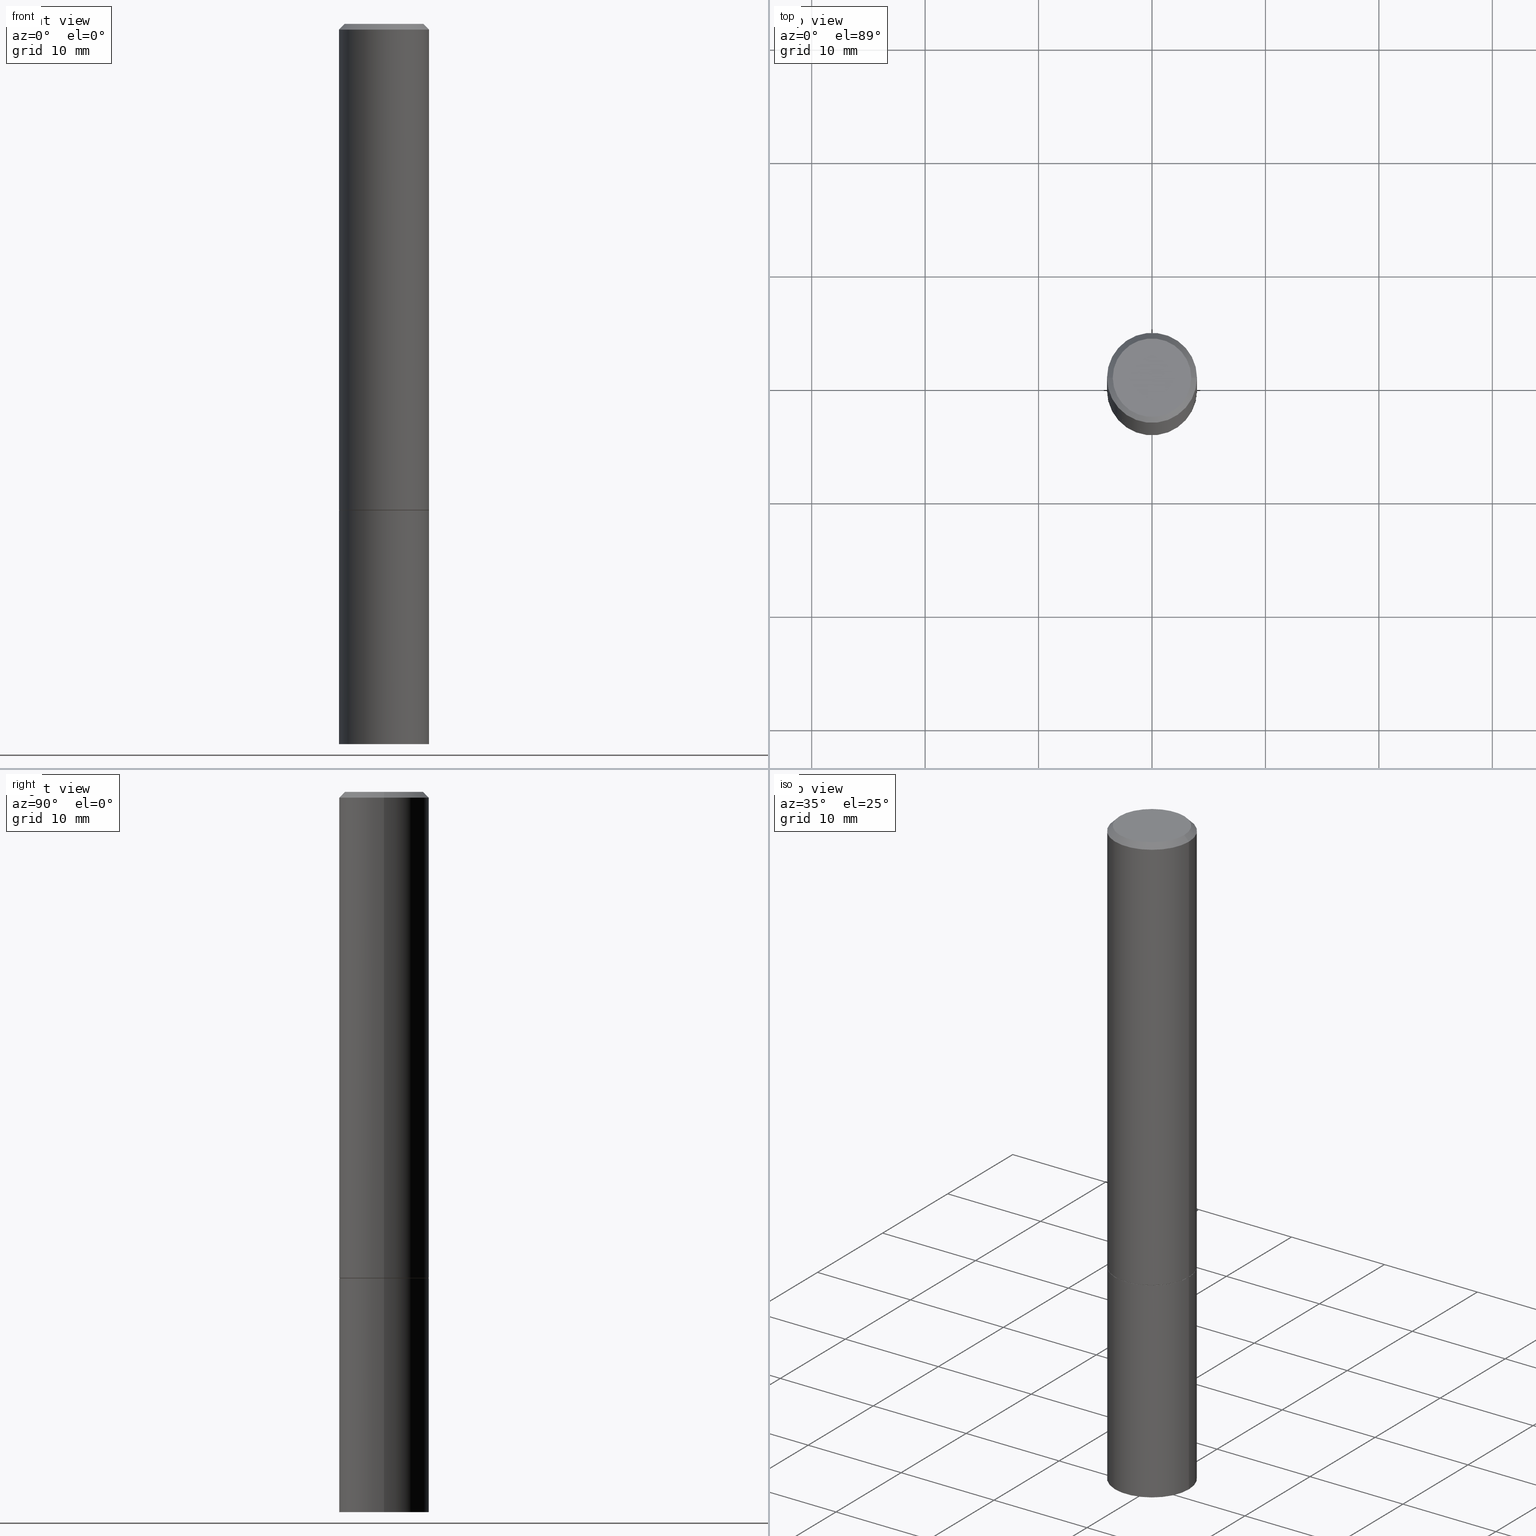
[diagram: canonical four-view strip — front | top / right | iso, engineering-drawing reading convention]
A machine part, canonical four-view strip (front | top / right | iso — engineering-drawing reading convention). The complete STEP part file that produces these views, byte-faithful:
ISO-10303-21;
HEADER;
FILE_DESCRIPTION (( 'STEP AP203' ),
    '1' );
FILE_NAME ('30539.STEP',
    '2024-02-27T12:44:27',
    ( '' ),
    ( '' ),
    'SwSTEP 2.0',
    'SolidWorks 2023',
    '' );
FILE_SCHEMA (( 'CONFIG_CONTROL_DESIGN' ));
ENDSEC;

DATA;
#1 = CC_DESIGN_PERSON_AND_ORGANIZATION_ASSIGNMENT ( #76, #114, ( #222 ) ) ;
#2 = ORIENTED_EDGE ( 'NONE', *, *, #300, .F. ) ;
#3 = ORIENTED_EDGE ( 'NONE', *, *, #32, .F. ) ;
#4 = CARTESIAN_POINT ( 'NONE',  ( 0.000000000000000000, 0.000000000000000000, 0.000000000000000000 ) ) ;
#5 = PERSON_AND_ORGANIZATION ( #194, #133 ) ;
#6 = EDGE_CURVE ( 'NONE', #252, #28, #40, .T. ) ;
#7 = DIRECTION ( 'NONE',  ( -0.7071067811865232589, 7.493145998870265808E-15, 0.7071067811865715536 ) ) ;
#8 = FACE_OUTER_BOUND ( 'NONE', #115, .T. ) ;
#9 = DIRECTION ( 'NONE',  ( 1.000000000000000000, -6.982962677686269077E-15, 0.000000000000000000 ) ) ;
#10 = PLANE ( 'NONE',  #112 ) ;
#11 = EDGE_LOOP ( 'NONE', ( #156, #26 ) ) ;
#12 = CARTESIAN_POINT ( 'NONE',  ( -0.1562499999999998057, 1.021258291611614692E-15, -0.02000000000000003511 ) ) ;
#13 = PRODUCT_DEFINITION_FORMATION_WITH_SPECIFIED_SOURCE ( 'ANY', '', #278, .NOT_KNOWN. ) ;
#14 = DIRECTION ( 'NONE',  ( 1.000000000000000000, -6.982962677686268288E-15, 0.000000000000000000 ) ) ;
#15 = DIRECTION ( 'NONE',  ( -2.445468806185136597E-29, 3.491481338843145583E-15, 1.000000000000000000 ) ) ;
#16 = ORIENTED_EDGE ( 'NONE', *, *, #172, .T. ) ;
#17 = LINE ( 'NONE', #12, #164 ) ;
#18 = ORIENTED_EDGE ( 'NONE', *, *, #77, .F. ) ;
#19 = APPROVAL_DATE_TIME ( #83, #279 ) ;
#20 = AXIS2_PLACEMENT_3D ( 'NONE', #345, #44, #269 ) ;
#21 = DIRECTION ( 'NONE',  ( -2.445468806185136597E-29, 3.491481338843145583E-15, 1.000000000000000000 ) ) ;
#22 = APPROVAL_STATUS ( 'not_yet_approved' ) ;
#23 = EDGE_LOOP ( 'NONE', ( #354, #132, #254, #3 ) ) ;
#24 = VERTEX_POINT ( 'NONE', #105 ) ;
#25 = ORIENTED_EDGE ( 'NONE', *, *, #196, .T. ) ;
#26 = ORIENTED_EDGE ( 'NONE', *, *, #196, .F. ) ;
#27 = CALENDAR_DATE ( 2024, 27, 2 ) ;
#28 = VERTEX_POINT ( 'NONE', #351 ) ;
#29 = DIRECTION ( 'NONE',  ( -2.445468806185136877E-29, 3.491481338843145188E-15, 1.000000000000000000 ) ) ;
#30 = PERSON_AND_ORGANIZATION ( #194, #133 ) ;
#31 = AXIS2_PLACEMENT_3D ( 'NONE', #150, #265, #9 ) ;
#32 = EDGE_CURVE ( 'NONE', #61, #110, #235, .T. ) ;
#33 = DIRECTION ( 'NONE',  ( -2.445468806185136597E-29, 3.491481338843145583E-15, 1.000000000000000000 ) ) ;
#34 = CYLINDRICAL_SURFACE ( 'NONE', #261, 0.1562499999999999167 ) ;
#35 = DATE_AND_TIME ( #119, #161 ) ;
#36 = AXIS2_PLACEMENT_3D ( 'NONE', #237, #97, #214 ) ;
#37 = FACE_OUTER_BOUND ( 'NONE', #293, .T. ) ;
#38 = EDGE_CURVE ( 'NONE', #46, #110, #319, .T. ) ;
#39 = DIRECTION ( 'NONE',  ( 1.000000000000000000, -6.982962677686265133E-15, 4.876176775795935232E-29 ) ) ;
#40 = LINE ( 'NONE', #126, #51 ) ;
#41 = DIRECTION ( 'NONE',  ( -1.000000000000000000, 6.982962677686265922E-15, -4.876176775795935793E-29 ) ) ;
#42 = DIRECTION ( 'NONE',  ( -1.000000000000000000, 6.982962677686265922E-15, -4.876176775795935793E-29 ) ) ;
#43 = UNCERTAINTY_MEASURE_WITH_UNIT (LENGTH_MEASURE( 1.000000000000000082E-05 ), #106, 'distance_accuracy_value', 'NONE');
#44 = DIRECTION ( 'NONE',  ( -2.445468806185136597E-29, 3.491481338843145583E-15, 1.000000000000000000 ) ) ;
#45 = ADVANCED_FACE ( 'NONE', ( #242 ), #128, .T. ) ;
#46 = VERTEX_POINT ( 'NONE', #360 ) ;
#47 = DIRECTION ( 'NONE',  ( 1.000000000000000000, -6.982962677686266711E-15, 4.876176775795935232E-29 ) ) ;
#48 = ORIENTED_EDGE ( 'NONE', *, *, #6, .T. ) ;
#49 = DATE_AND_TIME ( #299, #82 ) ;
#50 = DIRECTION ( 'NONE',  ( 1.000000000000000000, 0.000000000000000000, 0.000000000000000000 ) ) ;
#51 = VECTOR ( 'NONE', #209, 39.37007874015748854 ) ;
#52 = ORIENTED_EDGE ( 'NONE', *, *, #226, .T. ) ;
#53 = AXIS2_PLACEMENT_3D ( 'NONE', #94, #208, #125 ) ;
#54 = CC_DESIGN_PERSON_AND_ORGANIZATION_ASSIGNMENT ( #136, #257, ( #13 ) ) ;
#55 = ADVANCED_FACE ( 'NONE', ( #183 ), #297, .T. ) ;
#56 = VECTOR ( 'NONE', #72, 39.37007874015748143 ) ;
#57 = DIRECTION ( 'NONE',  ( 1.000000000000000000, -6.982962677686265133E-15, 4.876176775795935232E-29 ) ) ;
#58 = CARTESIAN_POINT ( 'NONE',  ( -0.1562500000000000000, 1.110223024625156540E-15, -7.685836078523291160E-30 ) ) ;
#59 = CC_DESIGN_PERSON_AND_ORGANIZATION_ASSIGNMENT ( #5, #187, ( #291 ) ) ;
#60 = AXIS2_PLACEMENT_3D ( 'NONE', #63, #323, #47 ) ;
#61 = VERTEX_POINT ( 'NONE', #327 ) ;
#62 = DIRECTION ( 'NONE',  ( 1.000000000000000000, -6.982962677686269077E-15, 0.000000000000000000 ) ) ;
#63 = CARTESIAN_POINT ( 'NONE',  ( 0.000000000000000000, 0.000000000000000000, 0.000000000000000000 ) ) ;
#64 = EDGE_CURVE ( 'NONE', #281, #61, #186, .T. ) ;
#65 = DIRECTION ( 'NONE',  ( 2.438088387897960049E-29, -3.491481338843145188E-15, -1.000000000000000000 ) ) ;
#66 = VERTEX_POINT ( 'NONE', #350 ) ;
#67 = DIRECTION ( 'NONE',  ( -2.445468806185136597E-29, 3.491481338843145583E-15, 1.000000000000000000 ) ) ;
#68 = CARTESIAN_POINT ( 'NONE',  ( 1.091087918388540310E-15, 0.1562499999999912570, -2.500000000000000444 ) ) ;
#69 = EDGE_LOOP ( 'NONE', ( #251, #244, #308, #301 ) ) ;
#70 = CARTESIAN_POINT ( 'NONE',  ( 9.514286648347523799E-16, 0.1362499999999998157, -4.757143324173778663E-16 ) ) ;
#71 = CIRCLE ( 'NONE', #31, 0.1562500000000000000 ) ;
#72 = DIRECTION ( 'NONE',  ( 0.7071067811865467956, -7.319954787623254468E-15, -0.7071067811865482389 ) ) ;
#73 = ORIENTED_EDGE ( 'NONE', *, *, #263, .T. ) ;
#74 = PERSON_AND_ORGANIZATION ( #194, #133 ) ;
#75 = ORIENTED_EDGE ( 'NONE', *, *, #6, .F. ) ;
#76 = PERSON_AND_ORGANIZATION ( #194, #133 ) ;
#77 = EDGE_CURVE ( 'NONE', #356, #66, #334, .T. ) ;
#78 = DATE_AND_TIME ( #27, #171 ) ;
#79 = ORIENTED_EDGE ( 'NONE', *, *, #104, .T. ) ;
#80 = CC_DESIGN_APPROVAL ( #213, ( #291 ) ) ;
#81 = ORIENTED_EDGE ( 'NONE', *, *, #329, .T. ) ;
#82 = LOCAL_TIME ( 7, 44, 27.00000000000000000, #192 ) ;
#83 = DATE_AND_TIME ( #201, #296 ) ;
#84 = EDGE_LOOP ( 'NONE', ( #215, #52 ) ) ;
#85 = DIRECTION ( 'NONE',  ( -1.000000000000000000, 6.982962677686266711E-15, 0.000000000000000000 ) ) ;
#86 = EDGE_CURVE ( 'NONE', #252, #366, #139, .T. ) ;
#87 = ORIENTED_EDGE ( 'NONE', *, *, #263, .F. ) ;
#88 = PLANE ( 'NONE',  #325 ) ;
#89 = CARTESIAN_POINT ( 'NONE',  ( -0.1552499999999999991, -4.790502902699674808E-15, -1.688000000000000167 ) ) ;
#90 = CIRCLE ( 'NONE', #342, 0.1562500000000000000 ) ;
#91 = ADVANCED_FACE ( 'NONE', ( #8 ), #34, .T. ) ;
#92 = CYLINDRICAL_SURFACE ( 'NONE', #313, 0.1562499999999999167 ) ;
#93 = VECTOR ( 'NONE', #7, 39.37007874015748854 ) ;
#94 = CARTESIAN_POINT ( 'NONE',  ( 4.127951344840510809E-29, -5.893620499967230340E-15, -1.688000000000000167 ) ) ;
#95 = CARTESIAN_POINT ( 'NONE',  ( 4.127951344840510809E-29, -5.893620499967230340E-15, -1.688000000000000167 ) ) ;
#96 = MANIFOLD_SOLID_BREP ( 'Body-Move/Copy2[2]', #108 ) ;
#97 = DIRECTION ( 'NONE',  ( -2.445468806185136597E-29, 3.491481338843145583E-15, 1.000000000000000000 ) ) ;
#98 = PLANE ( 'NONE',  #203 ) ;
#99 = ORIENTED_EDGE ( 'NONE', *, *, #130, .T. ) ;
#100 = AXIS2_PLACEMENT_3D ( 'NONE', #339, #287, #85 ) ;
#101 = DIRECTION ( 'NONE',  ( -2.445468806185136597E-29, 3.491481338843145583E-15, 1.000000000000000000 ) ) ;
#102 = CARTESIAN_POINT ( 'NONE',  ( -0.1562499999999999167, 1.110223024625155949E-15, -7.685836078523285555E-30 ) ) ;
#103 = COORDINATED_UNIVERSAL_TIME_OFFSET ( 5, 0, .BEHIND. ) ;
#104 = EDGE_CURVE ( 'NONE', #366, #281, #227, .T. ) ;
#105 = CARTESIAN_POINT ( 'NONE',  ( -0.1562500000000000000, -6.200938898912389918E-15, -1.688000000000000167 ) ) ;
#106 =( CONVERSION_BASED_UNIT ( 'INCH', #157 ) LENGTH_UNIT ( ) NAMED_UNIT ( #212 ) );
#107 = PERSON_AND_ORGANIZATION ( #194, #133 ) ;
#108 = CLOSED_SHELL ( 'NONE', ( #341, #91, #109, #288, #239, #315, #185, #231 ) ) ;
#109 = ADVANCED_FACE ( 'NONE', ( #228 ), #131, .T. ) ;
#110 = VERTEX_POINT ( 'NONE', #260 ) ;
#111 = ORIENTED_EDGE ( 'NONE', *, *, #38, .F. ) ;
#112 = AXIS2_PLACEMENT_3D ( 'NONE', #70, #206, #41 ) ;
#113 = APPROVAL_PERSON_ORGANIZATION ( #134, #213, #361 ) ;
#114 = PERSON_AND_ORGANIZATION_ROLE ( 'creator' ) ;
#115 = EDGE_LOOP ( 'NONE', ( #210, #193, #87, #220 ) ) ;
#116 = CC_DESIGN_PERSON_AND_ORGANIZATION_ASSIGNMENT ( #30, #147, ( #13 ) ) ;
#117 = DIRECTION ( 'NONE',  ( 1.000000000000000000, -6.982962677686269077E-15, 0.000000000000000000 ) ) ;
#118 = CLOSED_SHELL ( 'NONE', ( #167, #45, #148, #55 ) ) ;
#119 = CALENDAR_DATE ( 2024, 27, 2 ) ;
#120 = EDGE_CURVE ( 'NONE', #306, #356, #305, .T. ) ;
#121 = CARTESIAN_POINT ( 'NONE',  ( 4.127951344840510809E-29, -5.893620499967230340E-15, -1.688000000000000167 ) ) ;
#122 = DIRECTION ( 'NONE',  ( -2.445468806185136597E-29, 3.491481338843145583E-15, 1.000000000000000000 ) ) ;
#123 = AXIS2_PLACEMENT_3D ( 'NONE', #145, #283, #149 ) ;
#124 = AXIS2_PLACEMENT_3D ( 'NONE', #153, #174, #14 ) ;
#125 = DIRECTION ( 'NONE',  ( 1.000000000000000000, -6.982962677686268288E-15, 0.000000000000000000 ) ) ;
#126 = CARTESIAN_POINT ( 'NONE',  ( 0.1552499999999999991, -6.977725455678023499E-15, -1.688000000000000167 ) ) ;
#127 = CARTESIAN_POINT ( 'NONE',  ( 0.1562500000000000000, -9.819791265496344905E-15, -2.500000000000000000 ) ) ;
#128 = PLANE ( 'NONE',  #289 ) ;
#129 = DIRECTION ( 'NONE',  ( -2.445468806185136877E-29, 3.491481338843145188E-15, 1.000000000000000000 ) ) ;
#130 = EDGE_CURVE ( 'NONE', #306, #24, #340, .T. ) ;
#131 = CONICAL_SURFACE ( 'NONE', #100, 0.1562499999999998057, 0.7853981633974472798 ) ;
#132 = ORIENTED_EDGE ( 'NONE', *, *, #300, .T. ) ;
#133 = ORGANIZATION ( 'UNSPECIFIED', 'UNSPECIFIED', '' ) ;
#134 = PERSON_AND_ORGANIZATION ( #194, #133 ) ;
#135 = DIRECTION ( 'NONE',  ( 1.000000000000000000, -6.982962677686266711E-15, 4.876176775795936353E-29 ) ) ;
#136 = PERSON_AND_ORGANIZATION ( #194, #133 ) ;
#137 = ORIENTED_EDGE ( 'NONE', *, *, #104, .F. ) ;
#138 = EDGE_CURVE ( 'NONE', #356, #306, #364, .T. ) ;
#139 = CIRCLE ( 'NONE', #123, 0.1552499999999999991 ) ;
#140 = ORIENTED_EDGE ( 'NONE', *, *, #333, .F. ) ;
#141 = APPROVAL_PERSON_ORGANIZATION ( #189, #253, #255 ) ;
#142 = ORIENTED_EDGE ( 'NONE', *, *, #32, .T. ) ;
#143 = DATE_TIME_ROLE ( 'creation_date' ) ;
#144 = AXIS2_PLACEMENT_3D ( 'NONE', #202, #33, #204 ) ;
#145 = CARTESIAN_POINT ( 'NONE',  ( 4.127951344840510809E-29, -5.893620499967230340E-15, -1.688000000000000167 ) ) ;
#146 = APPROVAL_PERSON_ORGANIZATION ( #74, #279, #331 ) ;
#147 = PERSON_AND_ORGANIZATION_ROLE ( 'creator' ) ;
#148 = ADVANCED_FACE ( 'NONE', ( #258 ), #88, .F. ) ;
#149 = DIRECTION ( 'NONE',  ( 1.000000000000000000, -6.982962677686268288E-15, 0.000000000000000000 ) ) ;
#150 = CARTESIAN_POINT ( 'NONE',  ( 4.125505876034325766E-29, -5.890129018628387333E-15, -1.687000000000000055 ) ) ;
#151 = DIRECTION ( 'NONE',  ( 1.000000000000000000, -6.982962677686265133E-15, 0.000000000000000000 ) ) ;
#152 = CONICAL_SURFACE ( 'NONE', #124, 0.1552499999999999991, 0.7853981633974141952 ) ;
#153 = CARTESIAN_POINT ( 'NONE',  ( 4.127951344840510809E-29, -5.893620499967230340E-15, -1.688000000000000167 ) ) ;
#154 = ORIENTED_EDGE ( 'NONE', *, *, #86, .T. ) ;
#155 = FACE_OUTER_BOUND ( 'NONE', #23, .T. ) ;
#156 = ORIENTED_EDGE ( 'NONE', *, *, #86, .F. ) ;
#157 = LENGTH_MEASURE_WITH_UNIT ( LENGTH_MEASURE( 0.02539999999999999897 ), #310 );
#158 = CIRCLE ( 'NONE', #230, 0.1562499999999998057 ) ;
#159 = APPLICATION_CONTEXT ( 'configuration controlled 3d designs of mechanical parts and assemblies' ) ;
#160 = FACE_OUTER_BOUND ( 'NONE', #188, .T. ) ;
#161 = LOCAL_TIME ( 7, 44, 27.00000000000000000, #103 ) ;
#162 = PRODUCT_DEFINITION_SHAPE ( 'NONE', 'NONE',  #222 ) ;
#163 = SECURITY_CLASSIFICATION_LEVEL ( 'unclassified' ) ;
#164 = VECTOR ( 'NONE', #272, 39.37007874015748143 ) ;
#165 = EDGE_LOOP ( 'NONE', ( #81, #282 ) ) ;
#166 = EDGE_LOOP ( 'NONE', ( #154, #79, #140, #75 ) ) ;
#167 = ADVANCED_FACE ( 'NONE', ( #160 ), #362, .T. ) ;
#168 = APPLICATION_PROTOCOL_DEFINITION ( 'international standard', 'config_control_design', 1994, #233 ) ;
#169 = ORIENTED_EDGE ( 'NONE', *, *, #309, .F. ) ;
#170 = APPROVAL_DATE_TIME ( #284, #253 ) ;
#171 = LOCAL_TIME ( 7, 44, 27.00000000000000000, #307 ) ;
#172 = EDGE_CURVE ( 'NONE', #199, #61, #17, .T. ) ;
#173 = DIRECTION ( 'NONE',  ( -2.445468806185136597E-29, 3.491481338843145583E-15, 1.000000000000000000 ) ) ;
#174 = DIRECTION ( 'NONE',  ( -2.445468806185136597E-29, 3.491481338843145583E-15, 1.000000000000000000 ) ) ;
#175 = AXIS2_PLACEMENT_3D ( 'NONE', #95, #317, #62 ) ;
#176 = FACE_OUTER_BOUND ( 'NONE', #11, .T. ) ;
#177 = CC_DESIGN_DATE_AND_TIME_ASSIGNMENT ( #78, #143, ( #222 ) ) ;
#178 = FACE_OUTER_BOUND ( 'NONE', #240, .T. ) ;
#179 = DIRECTION ( 'NONE',  ( -2.445468806185136877E-29, 3.491481338843145188E-15, 1.000000000000000000 ) ) ;
#180 = FACE_OUTER_BOUND ( 'NONE', #84, .T. ) ;
#181 = AXIS2_PLACEMENT_3D ( 'NONE', #271, #15, #355 ) ;
#182 = CIRCLE ( 'NONE', #236, 0.1562500000000000000 ) ;
#183 = FACE_OUTER_BOUND ( 'NONE', #69, .T. ) ;
#184 = DIRECTION ( 'NONE',  ( -1.000000000000000000, 6.982962677686266711E-15, 0.000000000000000000 ) ) ;
#185 = ADVANCED_FACE ( 'NONE', ( #176 ), #98, .F. ) ;
#186 = LINE ( 'NONE', #102, #358 ) ;
#187 = PERSON_AND_ORGANIZATION_ROLE ( 'classification_officer' ) ;
#188 = EDGE_LOOP ( 'NONE', ( #352, #99, #322, #18 ) ) ;
#189 = PERSON_AND_ORGANIZATION ( #194, #133 ) ;
#190 = EDGE_LOOP ( 'NONE', ( #286, #270 ) ) ;
#191 = DIRECTION ( 'NONE',  ( 2.438088387897960049E-29, -3.491481338843145188E-15, -1.000000000000000000 ) ) ;
#192 = COORDINATED_UNIVERSAL_TIME_OFFSET ( 5, 0, .BEHIND. ) ;
#193 = ORIENTED_EDGE ( 'NONE', *, *, #64, .T. ) ;
#194 = PERSON ( 'UNSPECIFIED', 'UNSPECIFIED', 'UNSPECIFIED', ('UNSPECIFIED'), ('UNSPECIFIED'), ('UNSPECIFIED') ) ;
#195 = CIRCLE ( 'NONE', #20, 0.1552499999999999991 ) ;
#196 = EDGE_CURVE ( 'NONE', #366, #252, #195, .T. ) ;
#197 = CONICAL_SURFACE ( 'NONE', #268, 0.1562499999999998057, 0.7853981633974472798 ) ;
#198 =( NAMED_UNIT ( * ) SI_UNIT ( $, .STERADIAN. ) SOLID_ANGLE_UNIT ( ) );
#199 = VERTEX_POINT ( 'NONE', #241 ) ;
#200 = CARTESIAN_POINT ( 'NONE',  ( 0.1562500000000000000, -1.091087918388479174E-15, 7.619026212181150377E-30 ) ) ;
#201 = CALENDAR_DATE ( 2024, 27, 2 ) ;
#202 = CARTESIAN_POINT ( 'NONE',  ( 6.113672015462842613E-29, -8.728703347107864943E-15, -2.500000000000000000 ) ) ;
#203 = AXIS2_PLACEMENT_3D ( 'NONE', #264, #349, #292 ) ;
#204 = DIRECTION ( 'NONE',  ( 1.000000000000000000, -6.982962677686269077E-15, 0.000000000000000000 ) ) ;
#205 = CIRCLE ( 'NONE', #280, 0.1362499999999998157 ) ;
#206 = DIRECTION ( 'NONE',  ( 2.438088387897960049E-29, -3.491481338843145188E-15, -1.000000000000000000 ) ) ;
#207 = EDGE_CURVE ( 'NONE', #24, #66, #246, .T. ) ;
#208 = DIRECTION ( 'NONE',  ( -2.445468806185136597E-29, 3.491481338843145583E-15, 1.000000000000000000 ) ) ;
#209 = DIRECTION ( 'NONE',  ( 0.7071067811865232589, -2.468850131082003836E-15, 0.7071067811865715536 ) ) ;
#210 = ORIENTED_EDGE ( 'NONE', *, *, #333, .T. ) ;
#211 = CARTESIAN_POINT ( 'NONE',  ( 0.1552499999999999991, -6.977725455678023499E-15, -1.688000000000000167 ) ) ;
#212 = DIMENSIONAL_EXPONENTS ( 1.000000000000000000, 0.000000000000000000, 0.000000000000000000, 0.000000000000000000, 0.000000000000000000, 0.000000000000000000, 0.000000000000000000 ) ;
#213 = APPROVAL ( #248, 'UNSPECIFIED' ) ;
#214 = DIRECTION ( 'NONE',  ( 1.000000000000000000, -6.982962677686265133E-15, 0.000000000000000000 ) ) ;
#215 = ORIENTED_EDGE ( 'NONE', *, *, #309, .T. ) ;
#216 = DIRECTION ( 'NONE',  ( 1.000000000000000000, -6.982962677686269077E-15, 0.000000000000000000 ) ) ;
#217 = CARTESIAN_POINT ( 'NONE',  ( 4.125505876034325766E-29, -5.890129018628387333E-15, -1.687000000000000055 ) ) ;
#218 = ORIENTED_EDGE ( 'NONE', *, *, #172, .F. ) ;
#219 = CARTESIAN_POINT ( 'NONE',  ( 0.000000000000000000, 0.000000000000000000, 0.000000000000000000 ) ) ;
#220 = ORIENTED_EDGE ( 'NONE', *, *, #304, .F. ) ;
#221 = APPLICATION_PROTOCOL_DEFINITION ( 'international standard', 'config_control_design', 1994, #159 ) ;
#222 = PRODUCT_DEFINITION ( 'UNKNOWN', '', #13, #243 ) ;
#223 = ORIENTED_EDGE ( 'NONE', *, *, #38, .T. ) ;
#224 = CIRCLE ( 'NONE', #60, 0.1362499999999998157 ) ;
#225 = MECHANICAL_CONTEXT ( 'NONE', #159, 'mechanical' ) ;
#226 = EDGE_CURVE ( 'NONE', #46, #199, #224, .T. ) ;
#227 = LINE ( 'NONE', #89, #93 ) ;
#228 = FACE_OUTER_BOUND ( 'NONE', #277, .T. ) ;
#229 = CARTESIAN_POINT ( 'NONE',  ( 1.091087918388520392E-15, 0.1562499999999940881, -1.688000000000000611 ) ) ;
#230 = AXIS2_PLACEMENT_3D ( 'NONE', #353, #316, #151 ) ;
#231 = ADVANCED_FACE ( 'NONE', ( #180 ), #10, .F. ) ;
#232 = CARTESIAN_POINT ( 'NONE',  ( -0.1562500000000000000, -1.869756298077466803E-15, -1.687000000000000055 ) ) ;
#233 = APPLICATION_CONTEXT ( 'configuration controlled 3d designs of mechanical parts and assemblies' ) ;
#234 = DIRECTION ( 'NONE',  ( 1.000000000000000000, -6.982962677686266711E-15, 4.876176775795935232E-29 ) ) ;
#235 = CIRCLE ( 'NONE', #36, 0.1562499999999998057 ) ;
#236 = AXIS2_PLACEMENT_3D ( 'NONE', #121, #101, #216 ) ;
#237 = CARTESIAN_POINT ( 'NONE',  ( 4.890937612370281041E-31, -6.982962677686302702E-17, -0.02000000000000003511 ) ) ;
#238 = CARTESIAN_POINT ( 'NONE',  ( 0.000000000000000000, 0.000000000000000000, 0.000000000000000000 ) ) ;
#239 = ADVANCED_FACE ( 'NONE', ( #155 ), #92, .T. ) ;
#240 = EDGE_LOOP ( 'NONE', ( #111, #169, #16, #142 ) ) ;
#241 = CARTESIAN_POINT ( 'NONE',  ( -0.1362499999999998157, 9.863434782231836346E-16, -6.775751096333130074E-30 ) ) ;
#242 = FACE_OUTER_BOUND ( 'NONE', #190, .T. ) ;
#243 = DESIGN_CONTEXT ( 'detailed design', #233, 'design' ) ;
#244 = ORIENTED_EDGE ( 'NONE', *, *, #120, .T. ) ;
#245 = DIRECTION ( 'NONE',  ( -2.445468806185136597E-29, 3.491481338843145583E-15, 1.000000000000000000 ) ) ;
#246 = CIRCLE ( 'NONE', #175, 0.1562500000000000000 ) ;
#247 = CONICAL_SURFACE ( 'NONE', #53, 0.1552499999999999991, 0.7853981633974141952 ) ;
#248 = APPROVAL_STATUS ( 'not_yet_approved' ) ;
#249 = DATE_TIME_ROLE ( 'classification_date' ) ;
#250 = APPROVAL_STATUS ( 'not_yet_approved' ) ;
#251 = ORIENTED_EDGE ( 'NONE', *, *, #130, .F. ) ;
#252 = VERTEX_POINT ( 'NONE', #211 ) ;
#253 = APPROVAL ( #22, 'UNSPECIFIED' ) ;
#254 = ORIENTED_EDGE ( 'NONE', *, *, #304, .T. ) ;
#255 = APPROVAL_ROLE ( '' ) ;
#256 = DIRECTION ( 'NONE',  ( -2.445468806185136597E-29, 3.491481338843145583E-15, 1.000000000000000000 ) ) ;
#257 = PERSON_AND_ORGANIZATION_ROLE ( 'design_supplier' ) ;
#258 = FACE_OUTER_BOUND ( 'NONE', #165, .T. ) ;
#259 = CARTESIAN_POINT ( 'NONE',  ( 6.113672015462842613E-29, -8.728703347107864943E-15, -2.500000000000000000 ) ) ;
#260 = CARTESIAN_POINT ( 'NONE',  ( 0.1562499999999998057, -1.141782438928663330E-15, -0.02000000000000003511 ) ) ;
#261 = AXIS2_PLACEMENT_3D ( 'NONE', #4, #256, #57 ) ;
#262 = CC_DESIGN_APPROVAL ( #279, ( #222 ) ) ;
#263 = EDGE_CURVE ( 'NONE', #110, #61, #158, .T. ) ;
#264 = CARTESIAN_POINT ( 'NONE',  ( 4.127951344840510809E-29, -5.893620499967230340E-15, -1.688000000000000167 ) ) ;
#265 = DIRECTION ( 'NONE',  ( -2.445468806185136597E-29, 3.491481338843145583E-15, 1.000000000000000000 ) ) ;
#266 = APPROVAL_DATE_TIME ( #35, #213 ) ;
#267 = DIRECTION ( 'NONE',  ( 2.445468806185136597E-29, -3.491481338843145583E-15, -1.000000000000000000 ) ) ;
#268 = AXIS2_PLACEMENT_3D ( 'NONE', #294, #267, #184 ) ;
#269 = DIRECTION ( 'NONE',  ( 1.000000000000000000, -6.982962677686268288E-15, 0.000000000000000000 ) ) ;
#270 = ORIENTED_EDGE ( 'NONE', *, *, #120, .F. ) ;
#271 = CARTESIAN_POINT ( 'NONE',  ( 0.000000000000000000, 0.000000000000000000, 0.000000000000000000 ) ) ;
#272 = DIRECTION ( 'NONE',  ( -0.7071067811865467956, 2.468850131082249172E-15, -0.7071067811865482389 ) ) ;
#273 =( NAMED_UNIT ( * ) PLANE_ANGLE_UNIT ( ) SI_UNIT ( $, .RADIAN. ) );
#274 = AXIS2_PLACEMENT_3D ( 'NONE', #219, #302, #50 ) ;
#275 = CARTESIAN_POINT ( 'NONE',  ( 0.000000000000000000, 0.000000000000000000, 0.000000000000000000 ) ) ;
#276 = PERSON_AND_ORGANIZATION_ROLE ( 'design_owner' ) ;
#277 = EDGE_LOOP ( 'NONE', ( #344, #223, #73, #218 ) ) ;
#278 = PRODUCT ( '30539', '30539', '', ( #225 ) ) ;
#279 = APPROVAL ( #250, 'UNSPECIFIED' ) ;
#280 = AXIS2_PLACEMENT_3D ( 'NONE', #238, #245, #234 ) ;
#281 = VERTEX_POINT ( 'NONE', #232 ) ;
#282 = ORIENTED_EDGE ( 'NONE', *, *, #207, .T. ) ;
#283 = DIRECTION ( 'NONE',  ( -2.445468806185136597E-29, 3.491481338843145583E-15, 1.000000000000000000 ) ) ;
#284 = DATE_AND_TIME ( #303, #326 ) ;
#285 = CC_DESIGN_SECURITY_CLASSIFICATION ( #291, ( #13 ) ) ;
#286 = ORIENTED_EDGE ( 'NONE', *, *, #138, .F. ) ;
#287 = DIRECTION ( 'NONE',  ( 2.445468806185136597E-29, -3.491481338843145583E-15, -1.000000000000000000 ) ) ;
#288 = ADVANCED_FACE ( 'NONE', ( #178 ), #197, .T. ) ;
#289 = AXIS2_PLACEMENT_3D ( 'NONE', #68, #65, #42 ) ;
#290 = CARTESIAN_POINT ( 'NONE',  ( -0.1552499999999999991, -4.785204448351452406E-15, -1.688000000000000167 ) ) ;
#291 = SECURITY_CLASSIFICATION ( '', '', #163 ) ;
#292 = DIRECTION ( 'NONE',  ( 1.000000000000000000, -6.982962677686265922E-15, 4.876176775795935793E-29 ) ) ;
#293 = EDGE_LOOP ( 'NONE', ( #137, #25, #48, #2 ) ) ;
#294 = CARTESIAN_POINT ( 'NONE',  ( 4.890937612370281041E-31, -6.982962677686302702E-17, -0.02000000000000003511 ) ) ;
#295 = DIRECTION ( 'NONE',  ( 1.000000000000000000, -6.982962677686269077E-15, 0.000000000000000000 ) ) ;
#296 = LOCAL_TIME ( 7, 44, 27.00000000000000000, #330 ) ;
#297 = CYLINDRICAL_SURFACE ( 'NONE', #181, 0.1562500000000000000 ) ;
#298 = CARTESIAN_POINT ( 'NONE',  ( 0.1562499999999999167, -1.091087918388478385E-15, 7.619026212181144772E-30 ) ) ;
#299 = CALENDAR_DATE ( 2024, 27, 2 ) ;
#300 = EDGE_CURVE ( 'NONE', #281, #28, #71, .T. ) ;
#301 = ORIENTED_EDGE ( 'NONE', *, *, #207, .F. ) ;
#302 = DIRECTION ( 'NONE',  ( 0.000000000000000000, 0.000000000000000000, 1.000000000000000000 ) ) ;
#303 = CALENDAR_DATE ( 2024, 27, 2 ) ;
#304 = EDGE_CURVE ( 'NONE', #28, #110, #320, .T. ) ;
#305 = CIRCLE ( 'NONE', #144, 0.1562500000000000000 ) ;
#306 = VERTEX_POINT ( 'NONE', #347 ) ;
#307 = COORDINATED_UNIVERSAL_TIME_OFFSET ( 5, 0, .BEHIND. ) ;
#308 = ORIENTED_EDGE ( 'NONE', *, *, #77, .T. ) ;
#309 = EDGE_CURVE ( 'NONE', #199, #46, #205, .T. ) ;
#310 =( LENGTH_UNIT ( ) NAMED_UNIT ( * ) SI_UNIT ( $, .METRE. ) );
#311 = DIRECTION ( 'NONE',  ( -2.445468806185136877E-29, 3.491481338843145188E-15, 1.000000000000000000 ) ) ;
#312 = VECTOR ( 'NONE', #29, 39.37007874015748143 ) ;
#313 = AXIS2_PLACEMENT_3D ( 'NONE', #357, #122, #39 ) ;
#314 = SHAPE_DEFINITION_REPRESENTATION ( #162, #324 ) ;
#315 = ADVANCED_FACE ( 'NONE', ( #37 ), #247, .T. ) ;
#316 = DIRECTION ( 'NONE',  ( -2.445468806185136597E-29, 3.491481338843145583E-15, 1.000000000000000000 ) ) ;
#317 = DIRECTION ( 'NONE',  ( -2.445468806185136597E-29, 3.491481338843145583E-15, 1.000000000000000000 ) ) ;
#318 = PRODUCT_RELATED_PRODUCT_CATEGORY ( 'detail', '', ( #278 ) ) ;
#319 = LINE ( 'NONE', #321, #56 ) ;
#320 = LINE ( 'NONE', #298, #359 ) ;
#321 = CARTESIAN_POINT ( 'NONE',  ( 0.1562499999999998057, -1.141782438928663330E-15, -0.02000000000000003511 ) ) ;
#322 = ORIENTED_EDGE ( 'NONE', *, *, #329, .F. ) ;
#323 = DIRECTION ( 'NONE',  ( -2.445468806185136597E-29, 3.491481338843145583E-15, 1.000000000000000000 ) ) ;
#324 = ADVANCED_BREP_SHAPE_REPRESENTATION ( '30539', ( #343, #96, #274 ), #336 ) ;
#325 = AXIS2_PLACEMENT_3D ( 'NONE', #229, #191, #363 ) ;
#326 = LOCAL_TIME ( 7, 44, 27.00000000000000000, #338 ) ;
#327 = CARTESIAN_POINT ( 'NONE',  ( -0.1562499999999998057, 1.021258291611614692E-15, -0.02000000000000003511 ) ) ;
#328 = FACE_OUTER_BOUND ( 'NONE', #166, .T. ) ;
#329 = EDGE_CURVE ( 'NONE', #66, #24, #182, .T. ) ;
#330 = COORDINATED_UNIVERSAL_TIME_OFFSET ( 5, 0, .BEHIND. ) ;
#331 = APPROVAL_ROLE ( '' ) ;
#332 = AXIS2_PLACEMENT_3D ( 'NONE', #275, #21, #135 ) ;
#333 = EDGE_CURVE ( 'NONE', #28, #281, #90, .T. ) ;
#334 = LINE ( 'NONE', #200, #312 ) ;
#335 = AXIS2_PLACEMENT_3D ( 'NONE', #259, #173, #117 ) ;
#336 =( GEOMETRIC_REPRESENTATION_CONTEXT ( 3 ) GLOBAL_UNCERTAINTY_ASSIGNED_CONTEXT ( ( #43 ) ) GLOBAL_UNIT_ASSIGNED_CONTEXT ( ( #106, #273, #198 ) ) REPRESENTATION_CONTEXT ( 'NONE', 'WORKASPACE' ) );
#337 = CC_DESIGN_PERSON_AND_ORGANIZATION_ASSIGNMENT ( #107, #276, ( #278 ) ) ;
#338 = COORDINATED_UNIVERSAL_TIME_OFFSET ( 5, 0, .BEHIND. ) ;
#339 = CARTESIAN_POINT ( 'NONE',  ( 4.890937612370281041E-31, -6.982962677686302702E-17, -0.02000000000000003511 ) ) ;
#340 = LINE ( 'NONE', #58, #346 ) ;
#341 = ADVANCED_FACE ( 'NONE', ( #328 ), #152, .T. ) ;
#342 = AXIS2_PLACEMENT_3D ( 'NONE', #217, #67, #295 ) ;
#343 = MANIFOLD_SOLID_BREP ( 'Body-Move/Copy2[1]', #118 ) ;
#344 = ORIENTED_EDGE ( 'NONE', *, *, #226, .F. ) ;
#345 = CARTESIAN_POINT ( 'NONE',  ( 4.127951344840510809E-29, -5.893620499967230340E-15, -1.688000000000000167 ) ) ;
#346 = VECTOR ( 'NONE', #311, 39.37007874015748143 ) ;
#347 = CARTESIAN_POINT ( 'NONE',  ( -0.1562500000000000000, -6.200938898912389918E-15, -2.500000000000000000 ) ) ;
#348 = CC_DESIGN_DATE_AND_TIME_ASSIGNMENT ( #49, #249, ( #291 ) ) ;
#349 = DIRECTION ( 'NONE',  ( -2.438088387897960049E-29, 3.491481338843145188E-15, 1.000000000000000000 ) ) ;
#350 = CARTESIAN_POINT ( 'NONE',  ( 0.1562500000000000000, -6.984708418355709513E-15, -1.688000000000000167 ) ) ;
#351 = CARTESIAN_POINT ( 'NONE',  ( 0.1562500000000000000, -6.981216937016866506E-15, -1.687000000000000055 ) ) ;
#352 = ORIENTED_EDGE ( 'NONE', *, *, #138, .T. ) ;
#353 = CARTESIAN_POINT ( 'NONE',  ( 4.890937612370281041E-31, -6.982962677686302702E-17, -0.02000000000000003511 ) ) ;
#354 = ORIENTED_EDGE ( 'NONE', *, *, #64, .F. ) ;
#355 = DIRECTION ( 'NONE',  ( 1.000000000000000000, -6.982962677686266711E-15, 4.876176775795936353E-29 ) ) ;
#356 = VERTEX_POINT ( 'NONE', #127 ) ;
#357 = CARTESIAN_POINT ( 'NONE',  ( 0.000000000000000000, 0.000000000000000000, 0.000000000000000000 ) ) ;
#358 = VECTOR ( 'NONE', #179, 39.37007874015748143 ) ;
#359 = VECTOR ( 'NONE', #129, 39.37007874015748143 ) ;
#360 = CARTESIAN_POINT ( 'NONE',  ( 0.1362499999999998157, -1.038262645562516744E-15, 6.957025900226686667E-30 ) ) ;
#361 = APPROVAL_ROLE ( '' ) ;
#362 = CYLINDRICAL_SURFACE ( 'NONE', #332, 0.1562500000000000000 ) ;
#363 = DIRECTION ( 'NONE',  ( -1.000000000000000000, 6.982962677686265922E-15, -4.876176775795935793E-29 ) ) ;
#364 = CIRCLE ( 'NONE', #335, 0.1562500000000000000 ) ;
#365 = CC_DESIGN_APPROVAL ( #253, ( #13 ) ) ;
#366 = VERTEX_POINT ( 'NONE', #290 ) ;
ENDSEC;
END-ISO-10303-21;
